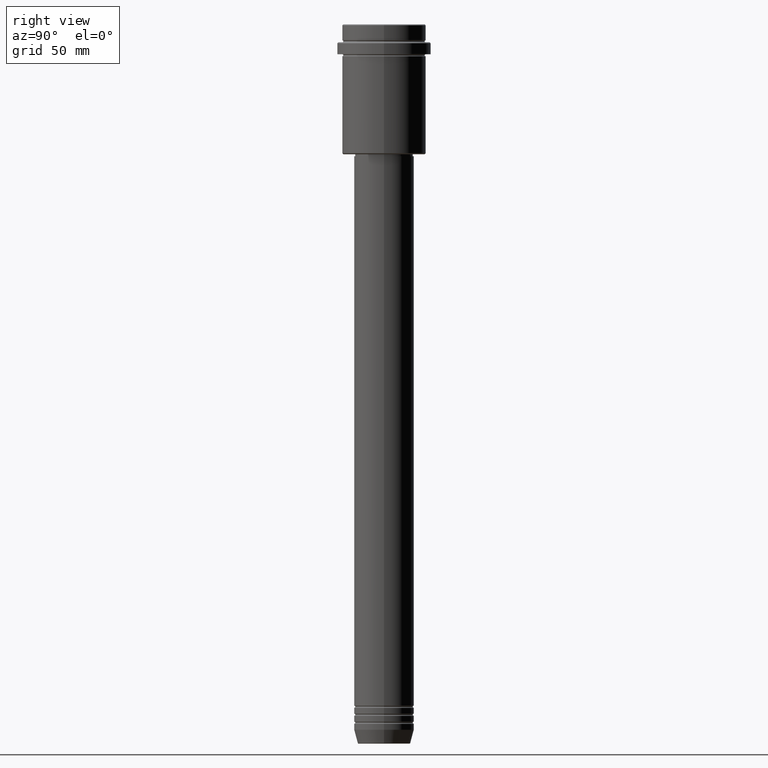
[diagram: clean part render]
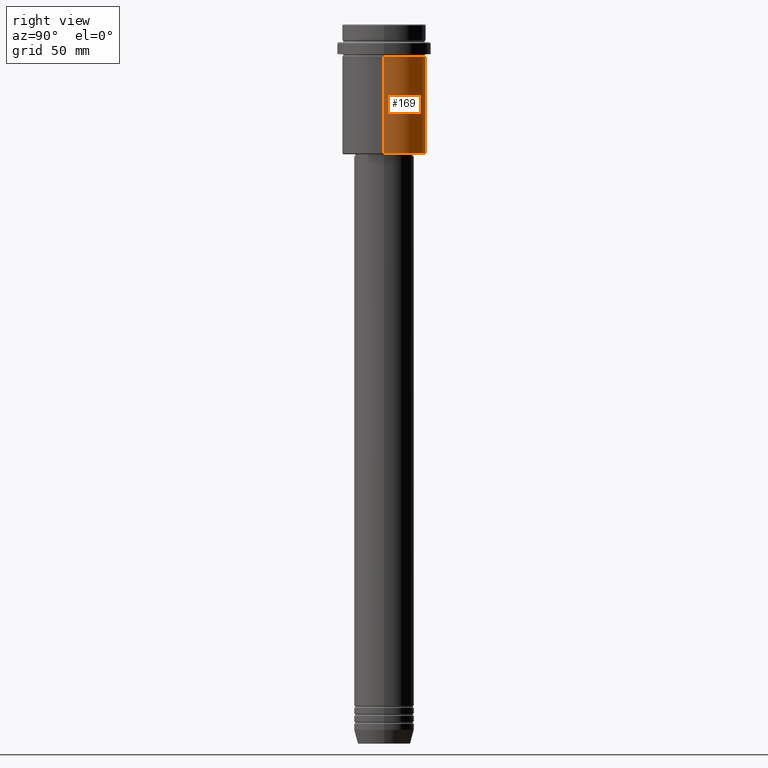
[diagram: same view with one face highlighted and labeled with its STEP entity id]
A machine part, right view. The second image highlights one B-rep face of the part: STEP entity #169.
In plain terms, the highlighted cylindrical surface (partial cylindrical patch) has radius 21 mm, axis along (-0, -0, 1).
Its self-contained STEP definition (entity closure, byte-faithful):
#13 = VERTEX_POINT ( 'NONE', #97 ) ;
#22 = AXIS2_PLACEMENT_3D ( 'NONE', #1104, #430, #452 ) ;
#39 = EDGE_CURVE ( 'NONE', #149, #1300, #1063, .T. ) ;
#48 = ORIENTED_EDGE ( 'NONE', *, *, #485, .F. ) ;
#64 = ORIENTED_EDGE ( 'NONE', *, *, #1233, .F. ) ;
#80 = VERTEX_POINT ( 'NONE', #522 ) ;
#96 = VECTOR ( 'NONE', #781, 1000.000000000000000 ) ;
#97 = CARTESIAN_POINT ( 'NONE',  ( -21.00000000000000000, 2.571758278209441661E-15, -16.00000000000000355 ) ) ;
#114 = DIRECTION ( 'NONE',  ( -0.000000000000000000, -0.000000000000000000, 1.000000000000000000 ) ) ;
#149 = VERTEX_POINT ( 'NONE', #786 ) ;
#169 = ADVANCED_FACE ( 'NONE', ( #694 ), #678, .T. ) ;
#196 = CARTESIAN_POINT ( 'NONE',  ( -21.00000000000000000, 2.571758278209441661E-15, -64.50000000000000000 ) ) ;
#246 = AXIS2_PLACEMENT_3D ( 'NONE', #747, #1066, #737 ) ;
#269 = DIRECTION ( 'NONE',  ( -0.000000000000000000, -0.000000000000000000, 1.000000000000000000 ) ) ;
#331 = VECTOR ( 'NONE', #114, 1000.000000000000000 ) ;
#430 = DIRECTION ( 'NONE',  ( -0.000000000000000000, -0.000000000000000000, 1.000000000000000000 ) ) ;
#452 = DIRECTION ( 'NONE',  ( 1.000000000000000000, 0.000000000000000000, 0.000000000000000000 ) ) ;
#485 = EDGE_CURVE ( 'NONE', #149, #80, #1055, .T. ) ;
#522 = CARTESIAN_POINT ( 'NONE',  ( 21.00000000000000000, 0.000000000000000000, -16.00000000000000355 ) ) ;
#678 = CYLINDRICAL_SURFACE ( 'NONE', #22, 21.00000000000000000 ) ;
#694 = FACE_OUTER_BOUND ( 'NONE', #1316, .T. ) ;
#737 = DIRECTION ( 'NONE',  ( -1.000000000000000000, 0.000000000000000000, 0.000000000000000000 ) ) ;
#747 = CARTESIAN_POINT ( 'NONE',  ( 0.000000000000000000, 0.000000000000000000, -64.50000000000000000 ) ) ;
#781 = DIRECTION ( 'NONE',  ( -0.000000000000000000, -0.000000000000000000, 1.000000000000000000 ) ) ;
#786 = CARTESIAN_POINT ( 'NONE',  ( 21.00000000000000000, 0.000000000000000000, -64.50000000000000000 ) ) ;
#801 = CARTESIAN_POINT ( 'NONE',  ( -21.00000000000000000, 2.571758278209441661E-15, 0.000000000000000000 ) ) ;
#1002 = LINE ( 'NONE', #801, #96 ) ;
#1044 = CARTESIAN_POINT ( 'NONE',  ( 0.000000000000000000, 0.000000000000000000, -16.00000000000000355 ) ) ;
#1055 = LINE ( 'NONE', #1087, #331 ) ;
#1063 = CIRCLE ( 'NONE', #246, 21.00000000000000000 ) ;
#1066 = DIRECTION ( 'NONE',  ( -0.000000000000000000, -0.000000000000000000, 1.000000000000000000 ) ) ;
#1071 = ORIENTED_EDGE ( 'NONE', *, *, #39, .T. ) ;
#1087 = CARTESIAN_POINT ( 'NONE',  ( 21.00000000000000000, 0.000000000000000000, 0.000000000000000000 ) ) ;
#1104 = CARTESIAN_POINT ( 'NONE',  ( 0.000000000000000000, 0.000000000000000000, 0.000000000000000000 ) ) ;
#1105 = EDGE_CURVE ( 'NONE', #1300, #13, #1002, .T. ) ;
#1142 = CIRCLE ( 'NONE', #1270, 21.00000000000000000 ) ;
#1233 = EDGE_CURVE ( 'NONE', #80, #13, #1142, .T. ) ;
#1270 = AXIS2_PLACEMENT_3D ( 'NONE', #1044, #269, #1385 ) ;
#1300 = VERTEX_POINT ( 'NONE', #196 ) ;
#1316 = EDGE_LOOP ( 'NONE', ( #1071, #1409, #64, #48 ) ) ;
#1385 = DIRECTION ( 'NONE',  ( 1.000000000000000000, 0.000000000000000000, 0.000000000000000000 ) ) ;
#1409 = ORIENTED_EDGE ( 'NONE', *, *, #1105, .T. ) ;